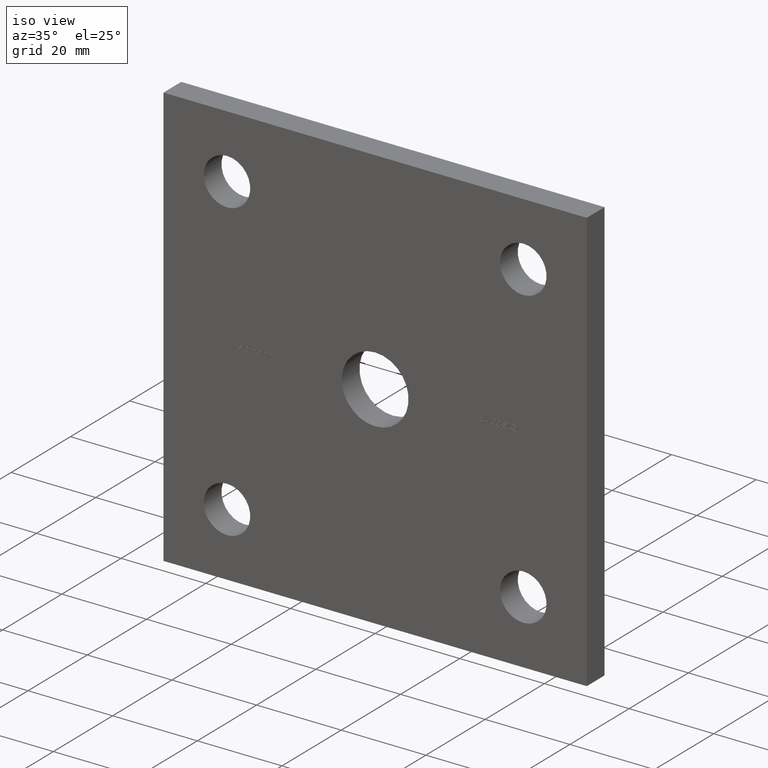
[diagram: clean part render]
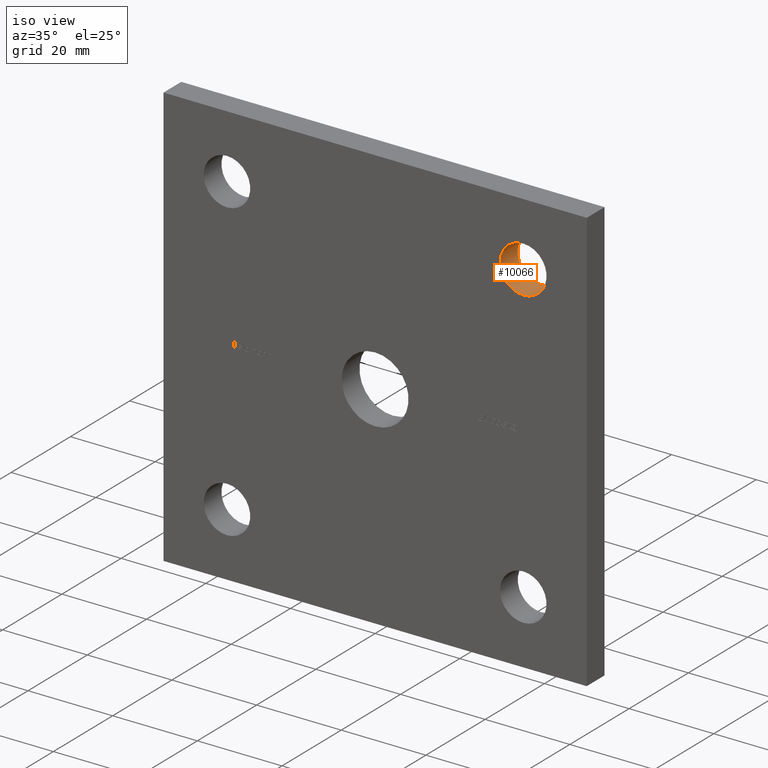
[diagram: same view with one face highlighted and labeled with its STEP entity id]
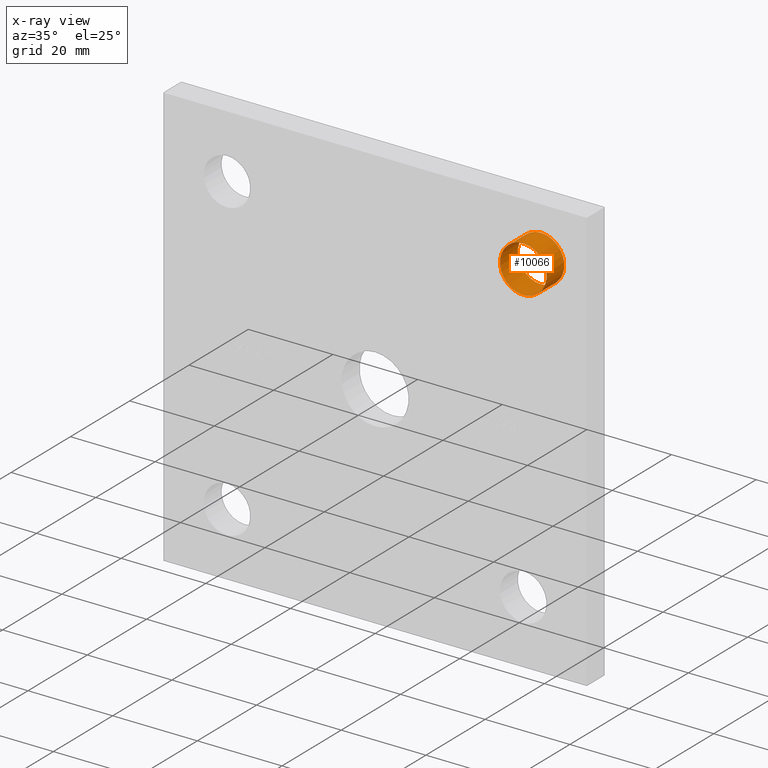
[diagram: x-ray of the same camera — body ghosted, the highlighted face saturated]
A machine part, iso view. The second image highlights one B-rep face of the part: STEP entity #10066.
The next image is the same camera in x-ray: the body ghosted, the highlighted face saturated — about 0% of this face is hidden behind the body in this view.
In plain terms, the highlighted cylindrical surface (bore or boss wall) has radius 5.5 mm, axis along (-0, 1, -0).
Its self-contained STEP definition (entity closure, byte-faithful):
#1192 = CARTESIAN_POINT ( 'NONE',  ( 35.00000000000000000, 6.000000000000000000, 35.00000000000000000 ) ) ;
#1358 = DIRECTION ( 'NONE',  ( 0.000000000000000000, 1.000000000000000000, 0.000000000000000000 ) ) ;
#1594 = CARTESIAN_POINT ( 'NONE',  ( 35.00000000000000000, 0.000000000000000000, 40.50000000000000000 ) ) ;
#2820 = VERTEX_POINT ( 'NONE', #1594 ) ;
#3179 = DIRECTION ( 'NONE',  ( 0.000000000000000000, 0.000000000000000000, 1.000000000000000000 ) ) ;
#4666 = FACE_OUTER_BOUND ( 'NONE', #9097, .T. ) ;
#4720 = ORIENTED_EDGE ( 'NONE', *, *, #5370, .F. ) ;
#4828 = EDGE_CURVE ( 'NONE', #10287, #10287, #8988, .T. ) ;
#5370 = EDGE_CURVE ( 'NONE', #2820, #2820, #9146, .T. ) ;
#6106 = ORIENTED_EDGE ( 'NONE', *, *, #4828, .T. ) ;
#6196 = CYLINDRICAL_SURFACE ( 'NONE', #9527, 5.499999999999998224 ) ;
#6317 = DIRECTION ( 'NONE',  ( -0.000000000000000000, 1.000000000000000000, -0.000000000000000000 ) ) ;
#7124 = FACE_OUTER_BOUND ( 'NONE', #10762, .T. ) ;
#7265 = CARTESIAN_POINT ( 'NONE',  ( 35.00000000000000000, 0.000000000000000000, 35.00000000000000000 ) ) ;
#8023 = DIRECTION ( 'NONE',  ( 0.000000000000000000, 1.000000000000000000, 0.000000000000000000 ) ) ;
#8988 = CIRCLE ( 'NONE', #10601, 5.499999999999998224 ) ;
#9097 = EDGE_LOOP ( 'NONE', ( #4720 ) ) ;
#9146 = CIRCLE ( 'NONE', #10696, 5.499999999999998224 ) ;
#9527 = AXIS2_PLACEMENT_3D ( 'NONE', #7265, #6317, #11102 ) ;
#10066 = ADVANCED_FACE ( 'NONE', ( #4666, #7124 ), #6196, .F. ) ;
#10287 = VERTEX_POINT ( 'NONE', #12520 ) ;
#10601 = AXIS2_PLACEMENT_3D ( 'NONE', #1192, #8023, #3179 ) ;
#10696 = AXIS2_PLACEMENT_3D ( 'NONE', #12080, #1358, #12172 ) ;
#10762 = EDGE_LOOP ( 'NONE', ( #6106 ) ) ;
#11102 = DIRECTION ( 'NONE',  ( 0.000000000000000000, 0.000000000000000000, 1.000000000000000000 ) ) ;
#12080 = CARTESIAN_POINT ( 'NONE',  ( 35.00000000000000000, 0.000000000000000000, 35.00000000000000000 ) ) ;
#12172 = DIRECTION ( 'NONE',  ( 0.000000000000000000, 0.000000000000000000, 1.000000000000000000 ) ) ;
#12520 = CARTESIAN_POINT ( 'NONE',  ( 35.00000000000000000, 6.000000000000000000, 40.50000000000000000 ) ) ;